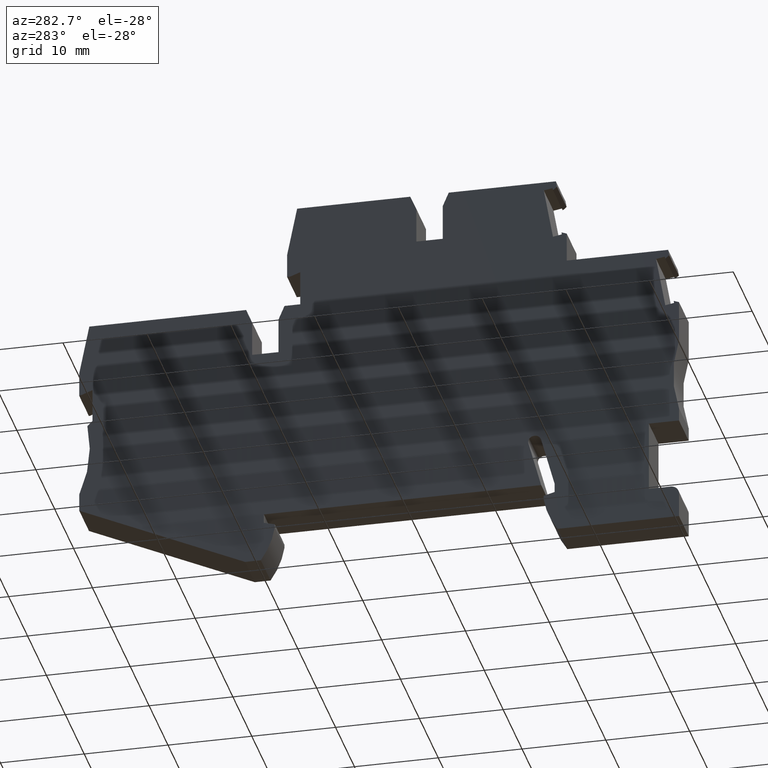
[diagram: clean part render]
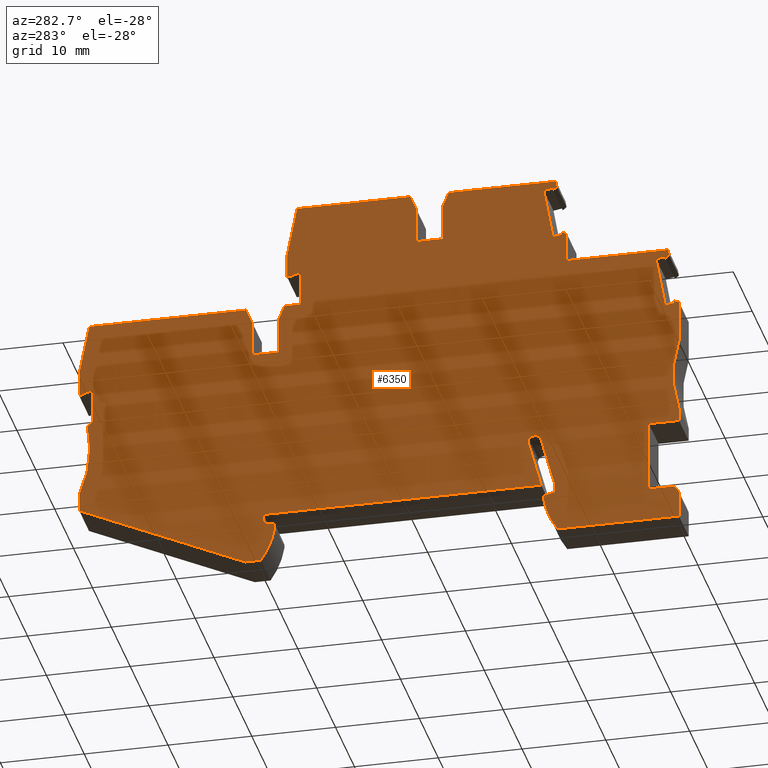
[diagram: same view with one face highlighted and labeled with its STEP entity id]
A machine part, auxiliary view. The second image highlights one B-rep face of the part: STEP entity #6350.
In plain terms, the highlighted planar face has unit normal (1, -0, 0).
Its self-contained STEP definition (entity closure, byte-faithful):
#60=CARTESIAN_POINT('',(14.196323,90.8327998951348,48.52));
#70=DIRECTION('',(-0.93969262078591,0.342020143325664,0.));
#80=VECTOR('',#70,1.);
#90=LINE('',#60,#80);
#100=CARTESIAN_POINT('',(206.893635774393,20.6967138221723,48.52));
#110=VERTEX_POINT('',#100);
#120=CARTESIAN_POINT('',(205.318635774393,21.2699669411416,48.52));
#130=VERTEX_POINT('',#120);
#140=EDGE_CURVE('',#110,#130,#90,.T.);
#570=CARTESIAN_POINT('',(205.92342329236,16.5919263042053,48.52));
#580=VERTEX_POINT('',#570);
#750=CARTESIAN_POINT('',(205.318635774393,17.1967138221727,48.52));
#760=VERTEX_POINT('',#750);
#790=CARTESIAN_POINT('',(237.69179859655,-15.176449,48.52));
#800=DIRECTION('',(-0.707106781186374,0.707106781186721,0.));
#810=VECTOR('',#800,1.);
#820=LINE('',#790,#810);
#830=EDGE_CURVE('',#580,#760,#820,.T.);
#950=CARTESIAN_POINT('',(177.020816295648,9.50637136280996,48.52));
#960=DIRECTION('',(0.,0.,1.));
#970=DIRECTION('',(1.,0.,0.));
#980=AXIS2_PLACEMENT_3D('',#950,#960,#970);
#990=PLANE('',#980);
#1000=CARTESIAN_POINT('',(14.196323,94.4654372237305,48.52));
#1010=DIRECTION('',(-0.93969262078591,0.342020143325664,0.));
#1020=VECTOR('',#1010,1.);
#1030=LINE('',#1000,#1020);
#1040=CARTESIAN_POINT('',(181.720996184554,33.4914426793802,48.52));
#1050=VERTEX_POINT('',#1040);
#1060=CARTESIAN_POINT('',(180.518635451669,33.929066197001,48.52));
#1070=VERTEX_POINT('',#1060);
#1080=EDGE_CURVE('',#1050,#1070,#1030,.T.);
#1090=ORIENTED_EDGE('',*,*,#1080,.T.);
#1100=CARTESIAN_POINT('',(14.196323,33.4914426793802,48.52));
#1110=DIRECTION('',(1.,0.,0.));
#1120=VECTOR('',#1110,1.);
#1130=LINE('',#1100,#1120);
#1140=CARTESIAN_POINT('',(182.093635451669,33.4914426793802,48.52));
#1150=VERTEX_POINT('',#1140);
#1160=EDGE_CURVE('',#1050,#1150,#1130,.T.);
#1170=ORIENTED_EDGE('',*,*,#1160,.F.);
#1180=CARTESIAN_POINT('',(182.093635451669,-15.176449,48.52));
#1190=DIRECTION('',(-1.79500271114492E-28,1.,0.));
#1200=VECTOR('',#1190,1.);
#1210=LINE('',#1180,#1200);
#1220=CARTESIAN_POINT('',(182.093635451669,36.3467138221656,48.52));
#1230=VERTEX_POINT('',#1220);
#1240=EDGE_CURVE('',#1150,#1230,#1210,.T.);
#1250=ORIENTED_EDGE('',*,*,#1240,.F.);
#1260=CARTESIAN_POINT('',(192.398268016105,-15.176449,48.52));
#1270=DIRECTION('',(-0.196116135138246,0.980580675690908,0.));
#1280=VECTOR('',#1270,1.);
#1290=LINE('',#1260,#1280);
#1300=CARTESIAN_POINT('',(180.893635451668,42.3467138221656,48.52));
#1310=VERTEX_POINT('',#1300);
#1320=EDGE_CURVE('',#1230,#1310,#1290,.T.);
#1330=ORIENTED_EDGE('',*,*,#1320,.F.);
#1340=CARTESIAN_POINT('',(14.196323,42.3467138221656,48.52));
#1350=DIRECTION('',(1.,2.77555756154494E-17,0.));
#1360=VECTOR('',#1350,1.);
#1370=LINE('',#1340,#1360);
#1380=CARTESIAN_POINT('',(167.387135170976,42.3467138221656,48.52));
#1390=VERTEX_POINT('',#1380);
#1400=EDGE_CURVE('',#1390,#1310,#1370,.T.);
#1410=ORIENTED_EDGE('',*,*,#1400,.T.);
#1420=CARTESIAN_POINT('',(143.075149088678,-15.176449,48.52));
#1430=DIRECTION('',(-0.389303997086923,-0.921109330021222,0.));
#1440=VECTOR('',#1430,1.);
#1450=LINE('',#1420,#1440);
#1460=CARTESIAN_POINT('',(166.668635451695,40.6467138221657,48.52));
#1470=VERTEX_POINT('',#1460);
#1480=EDGE_CURVE('',#1390,#1470,#1450,.T.);
#1490=ORIENTED_EDGE('',*,*,#1480,.F.);
#1500=CARTESIAN_POINT('',(166.668635451695,-15.176449,48.52));
#1510=DIRECTION('',(-9.25648446781224E-15,1.,0.));
#1520=VECTOR('',#1510,1.);
#1530=LINE('',#1500,#1520);
#1540=CARTESIAN_POINT('',(166.668635451695,36.3467138221751,48.52));
#1550=VERTEX_POINT('',#1540);
#1560=EDGE_CURVE('',#1550,#1470,#1530,.T.);
#1570=ORIENTED_EDGE('',*,*,#1560,.T.);
#1580=CARTESIAN_POINT('',(14.196323,36.3467138221766,48.52));
#1590=DIRECTION('',(-1.,9.85322934354826E-15,0.));
#1600=VECTOR('',#1590,1.);
#1610=LINE('',#1580,#1600);
#1620=CARTESIAN_POINT('',(163.518635451675,36.3467138221751,48.52));
#1630=VERTEX_POINT('',#1620);
#1640=EDGE_CURVE('',#1550,#1630,#1610,.T.);
#1650=ORIENTED_EDGE('',*,*,#1640,.F.);
#1660=CARTESIAN_POINT('',(163.518635451675,-15.176449,48.52));
#1670=DIRECTION('',(2.76167977375508E-15,-1.,0.));
#1680=VECTOR('',#1670,1.);
#1690=LINE('',#1660,#1680);
#1700=CARTESIAN_POINT('',(163.518635451675,40.6467138221657,48.52));
#1710=VERTEX_POINT('',#1700);
#1720=EDGE_CURVE('',#1710,#1630,#1690,.T.);
#1730=ORIENTED_EDGE('',*,*,#1720,.T.);
#1740=CARTESIAN_POINT('',(187.112121814692,-15.176449,48.52));
#1750=DIRECTION('',(-0.389303997086923,0.921109330021222,0.));
#1760=VECTOR('',#1750,1.);
#1770=LINE('',#1740,#1760);
#1780=CARTESIAN_POINT('',(162.800135732393,42.3467138221671,48.52));
#1790=VERTEX_POINT('',#1780);
#1800=EDGE_CURVE('',#1710,#1790,#1770,.T.);
#1810=ORIENTED_EDGE('',*,*,#1800,.F.);
#1820=CARTESIAN_POINT('',(14.196323,42.3467138221842,48.52));
#1830=DIRECTION('',(-1.,1.1550482792444E-13,0.));
#1840=VECTOR('',#1830,1.);
#1850=LINE('',#1820,#1840);
#1860=CARTESIAN_POINT('',(150.014638759883,42.3467138221685,48.52));
#1870=VERTEX_POINT('',#1860);
#1880=EDGE_CURVE('',#1790,#1870,#1850,.T.);
#1890=ORIENTED_EDGE('',*,*,#1880,.F.);
#1900=CARTESIAN_POINT('',(139.871753138634,-15.176449,48.52));
#1910=DIRECTION('',(0.173648177667169,0.984807753012166,0.));
#1920=VECTOR('',#1910,1.);
#1930=LINE('',#1900,#1920);
#1940=CARTESIAN_POINT('',(149.886383935057,41.6193445658553,48.52));
#1950=VERTEX_POINT('',#1940);
#1960=EDGE_CURVE('',#1950,#1870,#1930,.T.);
#1970=ORIENTED_EDGE('',*,*,#1960,.T.);
#1980=CARTESIAN_POINT('',(14.196323,155.476824650563,48.52));
#1990=DIRECTION('',(-0.766044443119871,0.642787609685476,0.));
#2000=VECTOR('',#1990,1.);
#2010=LINE('',#1980,#2000);
#2020=CARTESIAN_POINT('',(150.355196458447,41.2259641503884,48.52));
#2030=VERTEX_POINT('',#2020);
#2040=EDGE_CURVE('',#2030,#1950,#2010,.T.);
#2050=ORIENTED_EDGE('',*,*,#2040,.T.);
#2060=CARTESIAN_POINT('',(140.409929243003,-15.176449,48.52));
#2070=DIRECTION('',(0.173648177666326,0.984807753012315,0.));
#2080=VECTOR('',#2070,1.);
#2090=LINE('',#2060,#2080);
#2100=CARTESIAN_POINT('',(150.402482180624,41.4941348069006,48.52));
#2110=VERTEX_POINT('',#2100);
#2120=EDGE_CURVE('',#2030,#2110,#2090,.T.);
#2130=ORIENTED_EDGE('',*,*,#2120,.F.);
#2140=CARTESIAN_POINT('',(14.196323,65.5109556090997,48.52));
#2150=DIRECTION('',(0.984807753012229,-0.173648177666812,0.));
#2160=VECTOR('',#2150,1.);
#2170=LINE('',#2140,#2160);
#2180=CARTESIAN_POINT('',(151.456226476328,41.3083312568005,48.52));
#2190=VERTEX_POINT('',#2180);
#2200=EDGE_CURVE('',#2110,#2190,#2170,.T.);
#2210=ORIENTED_EDGE('',*,*,#2200,.F.);
#2220=CARTESIAN_POINT('',(141.496435717659,-15.176449,48.52));
#2230=DIRECTION('',(0.173648177667041,0.984807753012189,0.));
#2240=VECTOR('',#2230,1.);
#2250=LINE('',#2220,#2240);
#2260=CARTESIAN_POINT('',(150.357901752584,35.0794222189993,48.52));
#2270=VERTEX_POINT('',#2260);
#2280=EDGE_CURVE('',#2270,#2190,#2250,.T.);
#2290=ORIENTED_EDGE('',*,*,#2280,.T.);
#2300=CARTESIAN_POINT('',(14.196323,59.0883822890138,48.52));
#2310=DIRECTION('',(-0.984807753012117,0.173648177667446,0.));
#2320=VECTOR('',#2310,1.);
#2330=LINE('',#2300,#2320);
#2340=CARTESIAN_POINT('',(149.30415745688,35.2652257691004,48.52));
#2350=VERTEX_POINT('',#2340);
#2360=EDGE_CURVE('',#2270,#2350,#2330,.T.);
#2370=ORIENTED_EDGE('',*,*,#2360,.F.);
#2380=CARTESIAN_POINT('',(140.409929242913,-15.176449,48.52));
#2390=DIRECTION('',(0.173648177667931,0.984807753012032,0.));
#2400=VECTOR('',#2390,1.);
#2410=LINE('',#2380,#2400);
#2420=CARTESIAN_POINT('',(149.351443179055,35.5333964256018,48.52));
#2430=VERTEX_POINT('',#2420);
#2440=EDGE_CURVE('',#2350,#2430,#2410,.T.);
#2450=ORIENTED_EDGE('',*,*,#2440,.F.);
#2460=CARTESIAN_POINT('',(14.196323,-13.6590443271738,48.52));
#2470=DIRECTION('',(0.939692620788304,0.342020143319087,0.));
#2480=VECTOR('',#2470,1.);
#2490=LINE('',#2460,#2480);
#2500=CARTESIAN_POINT('',(148.718635176939,35.3030731488307,48.52));
#2510=VERTEX_POINT('',#2500);
#2520=EDGE_CURVE('',#2510,#2430,#2490,.T.);
#2530=ORIENTED_EDGE('',*,*,#2520,.T.);
#2540=CARTESIAN_POINT('',(148.718635176939,-15.176449,48.52));
#2550=DIRECTION('',(0.,1.,0.));
#2560=VECTOR('',#2550,1.);
#2570=LINE('',#2540,#2560);
#2580=CARTESIAN_POINT('',(148.718635176939,31.7467138221753,48.52));
#2590=VERTEX_POINT('',#2580);
#2600=EDGE_CURVE('',#2590,#2510,#2570,.T.);
#2610=ORIENTED_EDGE('',*,*,#2600,.T.);
#2620=CARTESIAN_POINT('',(14.196323,31.7467138221753,48.52));
#2630=DIRECTION('',(1.,0.,0.));
#2640=VECTOR('',#2630,1.);
#2650=LINE('',#2620,#2640);
#2660=CARTESIAN_POINT('',(136.614638759884,31.7467138221753,48.52));
#2670=VERTEX_POINT('',#2660);
#2680=EDGE_CURVE('',#2670,#2590,#2650,.T.);
#2690=ORIENTED_EDGE('',*,*,#2680,.T.);
#2700=CARTESIAN_POINT('',(128.340819134138,-15.176449,48.52));
#2710=DIRECTION('',(0.173648177667334,0.984807753012137,0.));
#2720=VECTOR('',#2710,1.);
#2730=LINE('',#2700,#2720);
#2740=CARTESIAN_POINT('',(136.486383925749,31.0193445130692,48.52));
#2750=VERTEX_POINT('',#2740);
#2760=EDGE_CURVE('',#2750,#2670,#2730,.T.);
#2770=ORIENTED_EDGE('',*,*,#2760,.T.);
#2780=CARTESIAN_POINT('',(14.196323,133.632889532351,48.52));
#2790=DIRECTION('',(-0.766044443119474,0.642787609685948,0.));
#2800=VECTOR('',#2790,1.);
#2810=LINE('',#2780,#2800);
#2820=CARTESIAN_POINT('',(136.955196718064,30.6259638719466,48.52));
#2830=VERTEX_POINT('',#2820);
#2840=EDGE_CURVE('',#2830,#2750,#2810,.T.);
#2850=ORIENTED_EDGE('',*,*,#2840,.T.);
#2860=CARTESIAN_POINT('',(128.87899554722,-15.176449,48.52));
#2870=DIRECTION('',(0.173648177666326,0.984807753012315,0.));
#2880=VECTOR('',#2870,1.);
#2890=LINE('',#2860,#2880);
#2900=CARTESIAN_POINT('',(137.002482480031,30.8941347541144,48.52));
#2910=VERTEX_POINT('',#2900);
#2920=EDGE_CURVE('',#2830,#2910,#2890,.T.);
#2930=ORIENTED_EDGE('',*,*,#2920,.F.);
#2940=CARTESIAN_POINT('',(14.196323,52.5481740676151,48.52));
#2950=DIRECTION('',(0.984807753012229,-0.173648177666812,0.));
#2960=VECTOR('',#2950,1.);
#2970=LINE('',#2940,#2960);
#2980=CARTESIAN_POINT('',(138.056226476329,30.7083312568075,48.52));
#2990=VERTEX_POINT('',#2980);
#3000=EDGE_CURVE('',#2910,#2990,#2970,.T.);
#3010=ORIENTED_EDGE('',*,*,#3000,.F.);
#3020=CARTESIAN_POINT('',(129.96550171317,-15.176449,48.52));
#3030=DIRECTION('',(0.173648177667023,0.984807753012192,0.));
#3040=VECTOR('',#3030,1.);
#3050=LINE('',#3020,#3040);
#3060=CARTESIAN_POINT('',(136.957901743276,24.4794221662085,48.52));
#3070=VERTEX_POINT('',#3060);
#3080=EDGE_CURVE('',#3070,#2990,#3050,.T.);
#3090=ORIENTED_EDGE('',*,*,#3080,.T.);
#3100=CARTESIAN_POINT('',(14.196323,46.125600693081,48.52));
#3110=DIRECTION('',(-0.984807753012117,0.173648177667446,0.));
#3120=VECTOR('',#3110,1.);
#3130=LINE('',#3100,#3120);
#3140=CARTESIAN_POINT('',(135.904157746977,24.6652256635162,48.52));
#3150=VERTEX_POINT('',#3140);
#3160=EDGE_CURVE('',#3070,#3150,#3130,.T.);
#3170=ORIENTED_EDGE('',*,*,#3160,.F.);
#3180=CARTESIAN_POINT('',(128.878995547148,-15.176449,48.52));
#3190=DIRECTION('',(0.173648177667931,0.984807753012032,0.));
#3200=VECTOR('',#3190,1.);
#3210=LINE('',#3180,#3200);
#3220=CARTESIAN_POINT('',(135.951443499633,24.9333964928838,48.52));
#3230=VERTEX_POINT('',#3220);
#3240=EDGE_CURVE('',#3150,#3230,#3210,.T.);
#3250=ORIENTED_EDGE('',*,*,#3240,.F.);
#3260=CARTESIAN_POINT('',(14.196323,-19.3818432374782,48.52));
#3270=DIRECTION('',(0.939692620788387,0.342020143318859,0.));
#3280=VECTOR('',#3270,1.);
#3290=LINE('',#3260,#3280);
#3300=CARTESIAN_POINT('',(135.318635774393,24.7030733168878,48.52));
#3310=VERTEX_POINT('',#3300);
#3320=EDGE_CURVE('',#3310,#3230,#3290,.T.);
#3330=ORIENTED_EDGE('',*,*,#3320,.T.);
#3340=CARTESIAN_POINT('',(135.318635774393,-15.176449,48.52));
#3350=DIRECTION('',(0.,1.,0.));
#3360=VECTOR('',#3350,1.);
#3370=LINE('',#3340,#3360);
#3380=CARTESIAN_POINT('',(135.318635774393,19.6967137777627,48.52));
#3390=VERTEX_POINT('',#3380);
#3400=EDGE_CURVE('',#3390,#3310,#3370,.T.);
#3410=ORIENTED_EDGE('',*,*,#3400,.T.);
#3420=CARTESIAN_POINT('',(121.009547739173,15.1967138221689,48.52));
#3430=DIRECTION('',(0.,0.,1.));
#3440=DIRECTION('',(1.,0.,0.));
#3450=AXIS2_PLACEMENT_3D('',#3420,#3430,#3440);
#3460=CIRCLE('',#3450,15.0000000000003);
#3470=CARTESIAN_POINT('',(135.318635760428,10.6967138221689,48.52));
#3480=VERTEX_POINT('',#3470);
#3490=EDGE_CURVE('',#3480,#3390,#3460,.T.);
#3500=ORIENTED_EDGE('',*,*,#3490,.T.);
#3510=CARTESIAN_POINT('',(135.318635760428,-15.176449,48.52));
#3520=DIRECTION('',(-2.05391259555654E-15,1.,0.));
#3530=VECTOR('',#3520,1.);
#3540=LINE('',#3510,#3530);
#3550=CARTESIAN_POINT('',(135.318635760428,9.09671382217077,48.52));
#3560=VERTEX_POINT('',#3550);
#3570=EDGE_CURVE('',#3560,#3480,#3540,.T.);
#3580=ORIENTED_EDGE('',*,*,#3570,.T.);
#3590=CARTESIAN_POINT('',(14.196323,9.09671382217077,48.52));
#3600=DIRECTION('',(-1.,0.,0.));
#3610=VECTOR('',#3600,1.);
#3620=LINE('',#3590,#3610);
#3630=CARTESIAN_POINT('',(138.918635451691,9.09671382217077,48.52));
#3640=VERTEX_POINT('',#3630);
#3650=EDGE_CURVE('',#3640,#3560,#3620,.T.);
#3660=ORIENTED_EDGE('',*,*,#3650,.T.);
#3670=CARTESIAN_POINT('',(138.918635451691,-15.176449,48.52));
#3680=DIRECTION('',(0.,1.,0.));
#3690=VECTOR('',#3680,1.);
#3700=LINE('',#3670,#3690);
#3710=CARTESIAN_POINT('',(138.918635451691,0.496713822169946,48.52));
#3720=VERTEX_POINT('',#3710);
#3730=EDGE_CURVE('',#3720,#3640,#3700,.T.);
#3740=ORIENTED_EDGE('',*,*,#3730,.T.);
#3750=CARTESIAN_POINT('',(14.196323,0.496713822169946,48.52));
#3760=DIRECTION('',(1.,0.,0.));
#3770=VECTOR('',#3760,1.);
#3780=LINE('',#3750,#3770);
#3790=CARTESIAN_POINT('',(136.318635451692,0.496713822169946,48.52));
#3800=VERTEX_POINT('',#3790);
#3810=EDGE_CURVE('',#3800,#3720,#3780,.T.);
#3820=ORIENTED_EDGE('',*,*,#3810,.T.);
#3830=CARTESIAN_POINT('',(136.318635451692,-0.503286177830054,48.52));
#3840=DIRECTION('',(0.,0.,-1.));
#3850=DIRECTION('',(-1.,0.,0.));
#3860=AXIS2_PLACEMENT_3D('',#3830,#3840,#3850);
#3870=CIRCLE('',#3860,1.);
#3880=CARTESIAN_POINT('',(135.318635451692,-0.503286177829668,48.52));
#3890=VERTEX_POINT('',#3880);
#3900=EDGE_CURVE('',#3890,#3800,#3870,.T.);
#3910=ORIENTED_EDGE('',*,*,#3900,.T.);
#3920=CARTESIAN_POINT('',(135.318635451686,-15.176449,48.52));
#3930=DIRECTION('',(3.85723199412608E-13,1.,0.));
#3940=VECTOR('',#3930,1.);
#3950=LINE('',#3920,#3940);
#3960=CARTESIAN_POINT('',(135.318635451691,-3.50328617783007,48.52));
#3970=VERTEX_POINT('',#3960);
#3980=EDGE_CURVE('',#3970,#3890,#3950,.T.);
#3990=ORIENTED_EDGE('',*,*,#3980,.T.);
#4000=CARTESIAN_POINT('',(14.196323,-3.50328617783195,48.52));
#4010=DIRECTION('',(-1.,-1.54983628283514E-14,0.));
#4020=VECTOR('',#4010,1.);
#4030=LINE('',#4000,#4020);
#4040=CARTESIAN_POINT('',(149.809692107295,-3.50328617782984,48.52));
#4050=VERTEX_POINT('',#4040);
#4060=EDGE_CURVE('',#4050,#3970,#4030,.T.);
#4070=ORIENTED_EDGE('',*,*,#4060,.T.);
#4080=CARTESIAN_POINT('',(142.074663081051,2.01208561046779,48.52));
#4090=DIRECTION('',(0.,0.,1.));
#4100=DIRECTION('',(1.,0.,0.));
#4110=AXIS2_PLACEMENT_3D('',#4080,#4090,#4100);
#4120=CIRCLE('',#4110,9.49999999999899);
#4130=CARTESIAN_POINT('',(151.468635760428,0.596713822169457,48.52));
#4140=VERTEX_POINT('',#4130);
#4150=EDGE_CURVE('',#4050,#4140,#4120,.T.);
#4160=ORIENTED_EDGE('',*,*,#4150,.F.);
#4170=CARTESIAN_POINT('',(151.468635760438,-15.176449,48.52));
#4180=DIRECTION('',(6.29263798783561E-13,-1.,0.));
#4190=VECTOR('',#4180,1.);
#4200=LINE('',#4170,#4190);
#4210=CARTESIAN_POINT('',(151.468635760427,1.04837987200987,48.52));
#4220=VERTEX_POINT('',#4210);
#4230=EDGE_CURVE('',#4220,#4140,#4200,.T.);
#4240=ORIENTED_EDGE('',*,*,#4230,.T.);
#4250=CARTESIAN_POINT('',(14.196323,37.8303852193345,48.52));
#4260=DIRECTION('',(0.965925826289041,-0.258819045102623,0.));
#4270=VECTOR('',#4260,1.);
#4280=LINE('',#4250,#4270);
#4290=CARTESIAN_POINT('',(150.168635760428,1.39671382217031,48.52));
#4300=VERTEX_POINT('',#4290);
#4310=EDGE_CURVE('',#4300,#4220,#4280,.T.);
#4320=ORIENTED_EDGE('',*,*,#4310,.T.);
#4330=CARTESIAN_POINT('',(150.168635760428,-15.176449,48.52));
#4340=DIRECTION('',(0.,-1.,0.));
#4350=VECTOR('',#4340,1.);
#4360=LINE('',#4330,#4350);
#4370=CARTESIAN_POINT('',(150.168635760428,2.49671382217855,48.52));
#4380=VERTEX_POINT('',#4370);
#4390=EDGE_CURVE('',#4380,#4300,#4360,.T.);
#4400=ORIENTED_EDGE('',*,*,#4390,.T.);
#4410=CARTESIAN_POINT('',(145.433126054518,-15.176449,48.52));
#4420=DIRECTION('',(0.258819045102717,0.965925826289016,0.));
#4430=VECTOR('',#4420,1.);
#4440=LINE('',#4410,#4430);
#4450=CARTESIAN_POINT('',(151.778221359825,8.50376905825252,48.52));
#4460=VERTEX_POINT('',#4450);
#4470=EDGE_CURVE('',#4380,#4460,#4440,.T.);
#4480=ORIENTED_EDGE('',*,*,#4470,.F.);
#4490=CARTESIAN_POINT('',(152.550962020857,8.29671382217019,48.52));
#4500=DIRECTION('',(0.,0.,1.));
#4510=DIRECTION('',(1.,0.,0.));
#4520=AXIS2_PLACEMENT_3D('',#4490,#4500,#4510);
#4530=CIRCLE('',#4520,0.80000000000001);
#4540=CARTESIAN_POINT('',(152.780626876241,9.06303885386447,48.52));
#4550=VERTEX_POINT('',#4540);
#4560=EDGE_CURVE('',#4550,#4460,#4530,.T.);
#4570=ORIENTED_EDGE('',*,*,#4560,.T.);
#4580=CARTESIAN_POINT('',(152.620775508961,8.381534972453,48.52));
#4590=DIRECTION('',(0.,0.,1.));
#4600=DIRECTION('',(1.,0.,0.));
#4610=AXIS2_PLACEMENT_3D('',#4580,#4590,#4600);
#4620=CIRCLE('',#4610,0.700000000000238);
#4630=CARTESIAN_POINT('',(153.296923587363,8.20036164088116,48.52));
#4640=VERTEX_POINT('',#4630);
#4650=EDGE_CURVE('',#4640,#4550,#4620,.T.);
#4660=ORIENTED_EDGE('',*,*,#4650,.T.);
#4670=CARTESIAN_POINT('',(147.033126054522,-15.176449,48.52));
#4680=DIRECTION('',(0.25881904510258,0.965925826289053,0.));
#4690=VECTOR('',#4680,1.);
#4700=LINE('',#4670,#4690);
#4710=CARTESIAN_POINT('',(151.768635760428,2.4967138221702,48.52));
#4720=VERTEX_POINT('',#4710);
#4730=EDGE_CURVE('',#4720,#4640,#4700,.T.);
#4740=ORIENTED_EDGE('',*,*,#4730,.T.);
#4750=CARTESIAN_POINT('',(14.196323,2.4967138221702,48.52));
#4760=DIRECTION('',(-1.,0.,0.));
#4770=VECTOR('',#4760,1.);
#4780=LINE('',#4750,#4770);
#4790=CARTESIAN_POINT('',(184.868635760428,2.4967138221702,48.52));
#4800=VERTEX_POINT('',#4790);
#4810=EDGE_CURVE('',#4800,#4720,#4780,.T.);
#4820=ORIENTED_EDGE('',*,*,#4810,.T.);
#4830=CARTESIAN_POINT('',(184.868635760428,-15.176449,48.52));
#4840=DIRECTION('',(0.,1.,0.));
#4850=VECTOR('',#4840,1.);
#4860=LINE('',#4830,#4850);
#4870=CARTESIAN_POINT('',(184.868635760428,1.39671382217029,48.52));
#4880=VERTEX_POINT('',#4870);
#4890=EDGE_CURVE('',#4880,#4800,#4860,.T.);
#4900=ORIENTED_EDGE('',*,*,#4890,.T.);
#4910=CARTESIAN_POINT('',(14.196323,-44.3347945523262,48.52));
#4920=DIRECTION('',(0.965925826289085,0.258819045102457,0.));
#4930=VECTOR('',#4920,1.);
#4940=LINE('',#4910,#4930);
#4950=CARTESIAN_POINT('',(183.568635760428,1.04837987200992,48.52));
#4960=VERTEX_POINT('',#4950);
#4970=EDGE_CURVE('',#4960,#4880,#4940,.T.);
#4980=ORIENTED_EDGE('',*,*,#4970,.T.);
#4990=CARTESIAN_POINT('',(183.568635760417,-15.176449,48.52));
#5000=DIRECTION('',(6.9022565440946E-13,1.,0.));
#5010=VECTOR('',#5000,1.);
#5020=LINE('',#4990,#5010);
#5030=CARTESIAN_POINT('',(183.568635760428,0.596713822169631,48.52));
#5040=VERTEX_POINT('',#5030);
#5050=EDGE_CURVE('',#5040,#4960,#5020,.T.);
#5060=ORIENTED_EDGE('',*,*,#5050,.T.);
#5070=CARTESIAN_POINT('',(192.962608439804,2.0120856104678,48.52));
#5080=DIRECTION('',(0.,0.,-1.));
#5090=DIRECTION('',(-1.,0.,0.));
#5100=AXIS2_PLACEMENT_3D('',#5070,#5080,#5090);
#5110=CIRCLE('',#5100,9.499999999999);
#5120=CARTESIAN_POINT('',(185.22757941356,-3.5032861778298,48.52));
#5130=VERTEX_POINT('',#5120);
#5140=EDGE_CURVE('',#5130,#5040,#5110,.T.);
#5150=ORIENTED_EDGE('',*,*,#5140,.T.);
#5160=CARTESIAN_POINT('',(14.196323,-3.50328617781989,48.52));
#5170=DIRECTION('',(-1.,5.79120085220097E-14,0.));
#5180=VECTOR('',#5170,1.);
#5190=LINE('',#5160,#5180);
#5200=CARTESIAN_POINT('',(187.10472639837,-3.5032861778299,48.52));
#5210=VERTEX_POINT('',#5200);
#5220=EDGE_CURVE('',#5210,#5130,#5190,.T.);
#5230=ORIENTED_EDGE('',*,*,#5220,.T.);
#5240=CARTESIAN_POINT('',(14.196323,-82.6709506499307,48.52));
#5250=DIRECTION('',(-0.909228114586488,-0.416298253233784,0.));
#5260=VECTOR('',#5250,1.);
#5270=LINE('',#5240,#5260);
#5280=CARTESIAN_POINT('',(206.893635760428,5.55724359315391,48.52));
#5290=VERTEX_POINT('',#5280);
#5300=EDGE_CURVE('',#5290,#5210,#5270,.T.);
#5310=ORIENTED_EDGE('',*,*,#5300,.T.);
#5320=CARTESIAN_POINT('',(206.893635760428,-15.176449,48.52));
#5330=DIRECTION('',(-6.12323399573676E-17,-1.,0.));
#5340=VECTOR('',#5330,1.);
#5350=LINE('',#5320,#5340);
#5360=CARTESIAN_POINT('',(206.893635760428,7.69671382216882,48.52));
#5370=VERTEX_POINT('',#5360);
#5380=EDGE_CURVE('',#5370,#5290,#5350,.T.);
#5390=ORIENTED_EDGE('',*,*,#5380,.T.);
#5400=CARTESIAN_POINT('',(220.641362845294,13.6967138221685,48.52));
#5410=DIRECTION('',(0.,0.,1.));
#5420=DIRECTION('',(1.,0.,0.));
#5430=AXIS2_PLACEMENT_3D('',#5400,#5410,#5420);
#5440=CIRCLE('',#5430,14.9999999999983);
#5450=EDGE_CURVE('',#580,#5370,#5440,.T.);
#5460=ORIENTED_EDGE('',*,*,#5450,.T.);
#5470=ORIENTED_EDGE('',*,*,#830,.F.);
#5480=CARTESIAN_POINT('',(205.318635774393,-15.176449,48.52));
#5490=DIRECTION('',(1.79500271114492E-28,-1.,0.));
#5500=VECTOR('',#5490,1.);
#5510=LINE('',#5480,#5500);
#5520=EDGE_CURVE('',#130,#760,#5510,.T.);
#5530=ORIENTED_EDGE('',*,*,#5520,.T.);
#5540=ORIENTED_EDGE('',*,*,#140,.T.);
#5550=CARTESIAN_POINT('',(206.893635774393,-15.176449,48.52));
#5560=DIRECTION('',(-1.79500271114492E-28,1.,0.));
#5570=VECTOR('',#5560,1.);
#5580=LINE('',#5550,#5570);
#5590=CARTESIAN_POINT('',(206.893635774393,23.6967138221725,48.52));
#5600=VERTEX_POINT('',#5590);
#5610=EDGE_CURVE('',#110,#5600,#5580,.T.);
#5620=ORIENTED_EDGE('',*,*,#5610,.F.);
#5630=CARTESIAN_POINT('',(214.66826833883,-15.176449,48.52));
#5640=DIRECTION('',(-0.196116135138246,0.980580675690908,0.));
#5650=VECTOR('',#5640,1.);
#5660=LINE('',#5630,#5650);
#5670=CARTESIAN_POINT('',(205.693635774393,29.6967138221724,48.52));
#5680=VERTEX_POINT('',#5670);
#5690=EDGE_CURVE('',#5600,#5680,#5660,.T.);
#5700=ORIENTED_EDGE('',*,*,#5690,.F.);
#5710=CARTESIAN_POINT('',(14.196323,29.6967138221724,48.52));
#5720=DIRECTION('',(1.,2.77555756154494E-17,0.));
#5730=VECTOR('',#5720,1.);
#5740=LINE('',#5710,#5730);
#5750=CARTESIAN_POINT('',(186.987135479711,29.6967138221724,48.52));
#5760=VERTEX_POINT('',#5750);
#5770=EDGE_CURVE('',#5760,#5680,#5740,.T.);
#5780=ORIENTED_EDGE('',*,*,#5770,.T.);
#5790=CARTESIAN_POINT('',(168.021632602651,-15.176449,48.52));
#5800=DIRECTION('',(-0.389303997086923,-0.921109330021222,0.));
#5810=VECTOR('',#5800,1.);
#5820=LINE('',#5790,#5810);
#5830=CARTESIAN_POINT('',(186.268635451714,27.9967130917184,48.52));
#5840=VERTEX_POINT('',#5830);
#5850=EDGE_CURVE('',#5760,#5840,#5820,.T.);
#5860=ORIENTED_EDGE('',*,*,#5850,.F.);
#5870=CARTESIAN_POINT('',(186.268635451714,-15.176449,48.52));
#5880=DIRECTION('',(-9.25648446781224E-15,1.,0.));
#5890=VECTOR('',#5880,1.);
#5900=LINE('',#5870,#5890);
#5910=CARTESIAN_POINT('',(186.268635451714,23.6967138221751,48.52));
#5920=VERTEX_POINT('',#5910);
#5930=EDGE_CURVE('',#5920,#5840,#5900,.T.);
#5940=ORIENTED_EDGE('',*,*,#5930,.T.);
#5950=CARTESIAN_POINT('',(14.196323,23.6967138221751,48.52));
#5960=DIRECTION('',(-1.,0.,0.));
#5970=VECTOR('',#5960,1.);
#5980=LINE('',#5950,#5970);
#5990=CARTESIAN_POINT('',(183.118635451695,23.6967138221751,48.52));
#6000=VERTEX_POINT('',#5990);
#6010=EDGE_CURVE('',#5920,#6000,#5980,.T.);
#6020=ORIENTED_EDGE('',*,*,#6010,.F.);
#6030=CARTESIAN_POINT('',(183.118635451695,-15.176449,48.52));
#6040=DIRECTION('',(0.,-1.,0.));
#6050=VECTOR('',#6040,1.);
#6060=LINE('',#6030,#6050);
#6070=CARTESIAN_POINT('',(183.118635451695,27.9967130916925,48.52));
#6080=VERTEX_POINT('',#6070);
#6090=EDGE_CURVE('',#6080,#6000,#6060,.T.);
#6100=ORIENTED_EDGE('',*,*,#6090,.T.);
#6110=CARTESIAN_POINT('',(201.365638300738,-15.176449,48.52));
#6120=DIRECTION('',(-0.389303997086919,0.921109330021224,0.));
#6130=VECTOR('',#6120,1.);
#6140=LINE('',#6110,#6130);
#6150=CARTESIAN_POINT('',(182.400135423681,29.6967138221656,48.52));
#6160=VERTEX_POINT('',#6150);
#6170=EDGE_CURVE('',#6080,#6160,#6140,.T.);
#6180=ORIENTED_EDGE('',*,*,#6170,.F.);
#6190=CARTESIAN_POINT('',(14.196323,29.6967138221656,48.52));
#6200=DIRECTION('',(1.,0.,0.));
#6210=VECTOR('',#6200,1.);
#6220=LINE('',#6190,#6210);
#6230=CARTESIAN_POINT('',(180.518635451669,29.6967138221656,48.52));
#6240=VERTEX_POINT('',#6230);
#6250=EDGE_CURVE('',#6240,#6160,#6220,.T.);
#6260=ORIENTED_EDGE('',*,*,#6250,.T.);
#6270=CARTESIAN_POINT('',(180.518635451669,-15.176449,48.52));
#6280=DIRECTION('',(1.79500271114492E-28,-1.,0.));
#6290=VECTOR('',#6280,1.);
#6300=LINE('',#6270,#6290);
#6310=EDGE_CURVE('',#1070,#6240,#6300,.T.);
#6320=ORIENTED_EDGE('',*,*,#6310,.T.);
#6330=EDGE_LOOP('',(#6320,#6260,#6180,#6100,#6020,#5940,#5860,#5780,
#5700,#5620,#5540,#5530,#5470,#5460,#5390,#5310,#5230,#5150,#5060,#4980,
#4900,#4820,#4740,#4660,#4570,#4480,#4400,#4320,#4240,#4160,#4070,#3990,
#3910,#3820,#3740,#3660,#3580,#3500,#3410,#3330,#3250,#3170,#3090,#3010,
#2930,#2850,#2770,#2690,#2610,#2530,#2450,#2370,#2290,#2210,#2130,#2050,
#1970,#1890,#1810,#1730,#1650,#1570,#1490,#1410,#1330,#1250,#1170,#1090)
);
#6340=FACE_OUTER_BOUND('',#6330,.T.);
#6350=ADVANCED_FACE('',(#6340),#990,.F.);